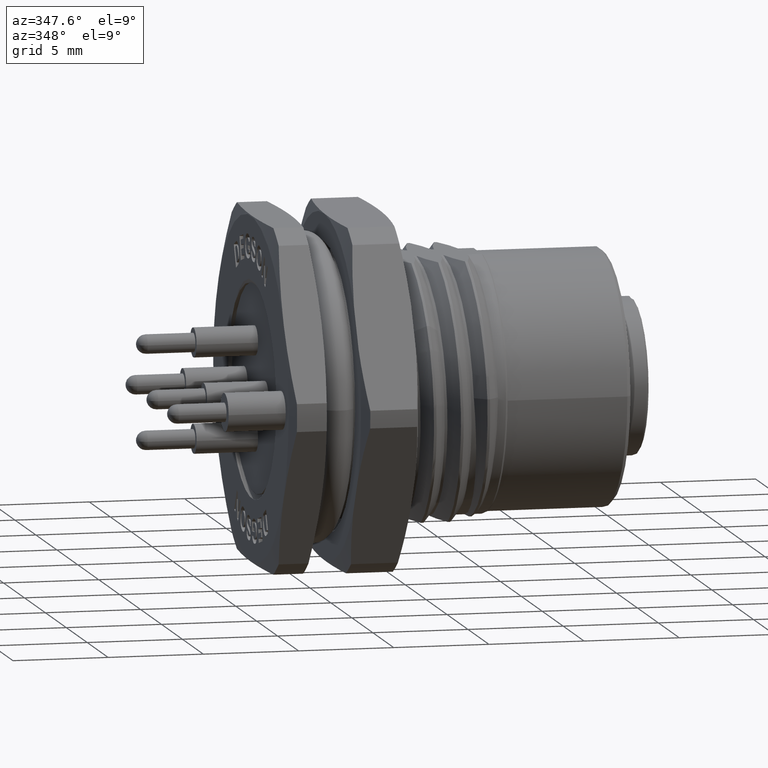
[diagram: clean part render]
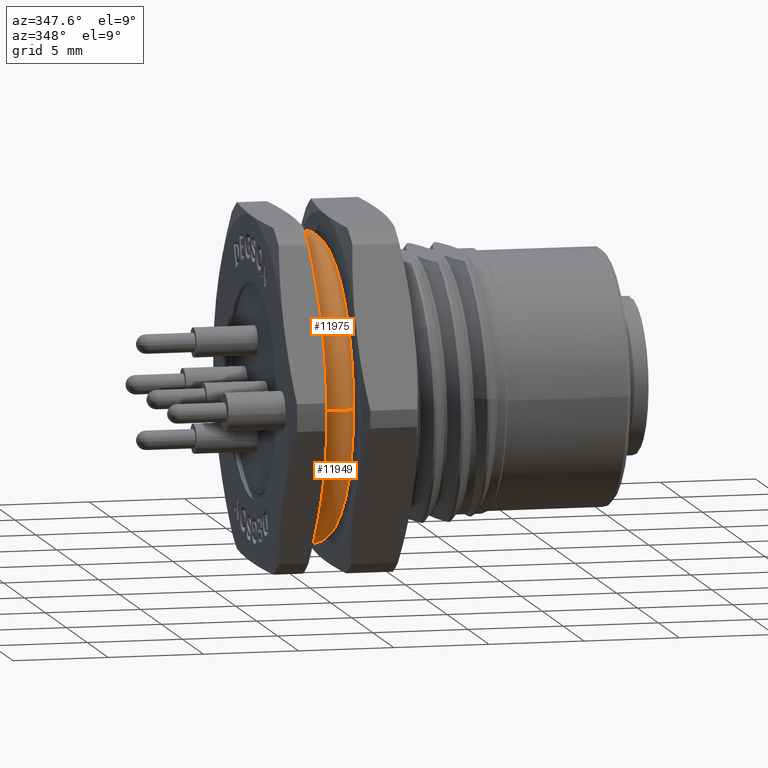
[diagram: same view with one multi-face feature highlighted, each face labeled with its STEP entity id]
A machine part, auxiliary view. The highlighted faces form ONE feature: a constant-radius fillet chain: 2 tangent blend faces with common blend radius 0.9 mm. The faces share edges in the B-rep.
Their STEP definitions:
[1] entity #11975 (Torus):
#1256=CARTESIAN_POINT('',(3.543307086619E-2,-2.814960629921E-1,0.E0));
#1257=DIRECTION('',(0.E0,0.E0,1.E0));
#1258=DIRECTION('',(-9.943904637273E-1,-1.057714784253E-1,0.E0));
#1259=AXIS2_PLACEMENT_3D('',#1256,#1257,#1258);
#1261=CARTESIAN_POINT('',(3.543307086619E-2,2.814960629921E-1,0.E0));
#1262=DIRECTION('',(0.E0,0.E0,1.E0));
#1263=DIRECTION('',(9.860132971836E-1,-1.666666666647E-1,0.E0));
#1264=AXIS2_PLACEMENT_3D('',#1261,#1262,#1263);
#1266=CARTESIAN_POINT('',(1.987630963299E-4,7.428432972406E-2,
2.754013515976E-1));
#1267=CARTESIAN_POINT('',(1.459506240303E-4,7.132406575666E-2,
2.756855760898E-1));
#1268=CARTESIAN_POINT('',(6.687559121089E-5,6.534974883958E-2,
2.762270869949E-1));
#1269=CARTESIAN_POINT('',(9.265593467468E-6,5.622676553167E-2,
2.769501391566E-1));
#1270=CARTESIAN_POINT('',(4.981820426422E-14,5.003684613870E-2,
2.773676256329E-1));
#1271=CARTESIAN_POINT('',(4.959574417818E-14,4.691486333754E-2,
2.775590551181E-1));
#1283=CARTESIAN_POINT('',(4.959574417818E-14,-4.691486333754E-2,
2.775590551181E-1));
#1284=CARTESIAN_POINT('',(4.981784939690E-14,-5.003703231787E-2,
2.773676142171E-1));
#1285=CARTESIAN_POINT('',(9.266800506669E-6,-5.622719967036E-2,
2.769501080318E-1));
#1286=CARTESIAN_POINT('',(6.688004032763E-5,-6.535018293335E-2,
2.762270493892E-1));
#1287=CARTESIAN_POINT('',(1.459539398076E-4,-7.132425161382E-2,
2.756855582450E-1));
#1288=CARTESIAN_POINT('',(1.987630963299E-4,-7.428432972406E-2,
2.754013515976E-1));
#1300=CARTESIAN_POINT('',(4.959574417818E-14,4.691486333754E-2,
2.775590551181E-1));
#1301=CARTESIAN_POINT('',(4.859568608724E-14,4.306270534444E-2,
2.766984935276E-1));
#1302=CARTESIAN_POINT('',(1.876036744944E-4,3.532731523585E-2,
2.751656431426E-1));
#1303=CARTESIAN_POINT('',(6.773489262774E-4,2.359334733026E-2,
2.735415920310E-1));
#1304=CARTESIAN_POINT('',(1.086337211768E-3,1.178910822818E-2,
2.725979641583E-1));
#1305=CARTESIAN_POINT('',(1.240539742541E-3,-4.802544990065E-5,
2.722922910934E-1));
#1306=CARTESIAN_POINT('',(1.084097723939E-3,-1.186798594657E-2,
2.726026104343E-1));
#1307=CARTESIAN_POINT('',(6.754075705450E-4,-2.363807150573E-2,
2.735471920567E-1));
#1308=CARTESIAN_POINT('',(1.873854925533E-4,-3.533716611082E-2,
2.751678068733E-1));
#1309=CARTESIAN_POINT('',(4.859778770129E-14,-4.306442918810E-2,
2.766988786295E-1));
#1310=CARTESIAN_POINT('',(4.959574417818E-14,-4.691486333754E-2,
2.775590551181E-1));
#1316=CARTESIAN_POINT('',(1.987630963299E-4,0.E0,0.E0));
#1317=DIRECTION('',(1.E0,0.E0,0.E0));
#1318=DIRECTION('',(0.E0,1.E0,0.E0));
#1319=AXIS2_PLACEMENT_3D('',#1316,#1317,#1318);
#1332=CARTESIAN_POINT('',(1.987630963299E-4,0.E0,0.E0));
#1333=DIRECTION('',(1.E0,0.E0,0.E0));
#1334=DIRECTION('',(0.E0,-2.604239291453E-1,9.654943692889E-1));
#1335=AXIS2_PLACEMENT_3D('',#1332,#1333,#1334);
#1355=CARTESIAN_POINT('',(7.037054990025E-2,0.E0,0.E0));
#1356=DIRECTION('',(1.E0,0.E0,0.E0));
#1357=DIRECTION('',(0.E0,1.E0,0.E0));
#1358=AXIS2_PLACEMENT_3D('',#1355,#1356,#1357);
#1642=CARTESIAN_POINT('',(7.037054990025E-2,-7.299407959725E-2,
2.657480314961E-1));
#1643=CARTESIAN_POINT('',(7.005777905063E-2,-6.600794451784E-2,
2.657480314961E-1));
#1644=CARTESIAN_POINT('',(6.921668395160E-2,-5.205995499235E-2,
2.657480314961E-1));
#1645=CARTESIAN_POINT('',(6.792343585525E-2,-3.098490510897E-2,
2.657480314961E-1));
#1646=CARTESIAN_POINT('',(6.714261206122E-2,-1.031617115069E-2,
2.657480314961E-1));
#1647=CARTESIAN_POINT('',(6.714291560785E-2,1.034162253896E-2,
2.657480314961E-1));
#1648=CARTESIAN_POINT('',(6.792585217767E-2,3.103301843631E-2,
2.657480314961E-1));
#1649=CARTESIAN_POINT('',(6.922005838781E-2,5.211058476768E-2,
2.657480314961E-1));
#1650=CARTESIAN_POINT('',(7.005872448813E-2,6.602906206803E-2,
2.657480314961E-1));
#1651=CARTESIAN_POINT('',(7.037054990025E-2,7.299407959725E-2,
2.657480314961E-1));
#1929=CARTESIAN_POINT('',(7.037054990025E-2,0.E0,0.E0));
#1930=DIRECTION('',(1.E0,0.E0,0.E0));
#1931=DIRECTION('',(0.E0,-2.648642316815E-1,9.642857142859E-1));
#1932=AXIS2_PLACEMENT_3D('',#1929,#1930,#1931);
#10988=VERTEX_POINT('',#1642);
#10989=VERTEX_POINT('',#1651);
#10990=CARTESIAN_POINT('',(7.037054990025E-2,-2.755905511811E-1,0.E0));
#10991=VERTEX_POINT('',#10990);
#10992=CARTESIAN_POINT('',(7.037054990025E-2,2.755905511811E-1,0.E0));
#10993=VERTEX_POINT('',#10992);
#10994=CARTESIAN_POINT('',(1.987630963299E-4,-7.428432972406E-2,
2.754013515976E-1));
#10995=CARTESIAN_POINT('',(1.987630963299E-4,-2.852438712827E-1,0.E0));
#10996=VERTEX_POINT('',#10994);
#10997=VERTEX_POINT('',#10995);
#11003=CARTESIAN_POINT('',(1.987630963299E-4,2.852438712827E-1,0.E0));
#11004=CARTESIAN_POINT('',(1.987630963299E-4,7.428432972406E-2,
2.754013515976E-1));
#11005=VERTEX_POINT('',#11003);
#11006=VERTEX_POINT('',#11004);
#11007=VERTEX_POINT('',#1271);
#11008=VERTEX_POINT('',#1283);
#11950=CARTESIAN_POINT('',(3.543307086619E-2,0.E0,0.E0));
#11951=DIRECTION('',(1.E0,0.E0,0.E0));
#11952=DIRECTION('',(0.E0,-1.E0,0.E0));
#11953=AXIS2_PLACEMENT_3D('',#11950,#11951,#11952);
#11954=TOROIDAL_SURFACE('',#11953,2.814960629921E-1,3.543307086614E-2);
#11956=ORIENTED_EDGE('',*,*,#11955,.F.);
#11958=ORIENTED_EDGE('',*,*,#11957,.F.);
#11960=ORIENTED_EDGE('',*,*,#11959,.F.);
#11962=ORIENTED_EDGE('',*,*,#11961,.F.);
#11963=ORIENTED_EDGE('',*,*,#11938,.F.);
#11965=ORIENTED_EDGE('',*,*,#11964,.T.);
#11967=ORIENTED_EDGE('',*,*,#11966,.F.);
#11969=ORIENTED_EDGE('',*,*,#11968,.T.);
#11970=ORIENTED_EDGE('',*,*,#11930,.F.);
#11972=ORIENTED_EDGE('',*,*,#11971,.F.);
#11973=EDGE_LOOP('',(#11956,#11958,#11960,#11962,#11963,#11965,#11967,#11969,
#11970,#11972));
#11974=FACE_OUTER_BOUND('',#11973,.F.);
#11975=ADVANCED_FACE('',(#11974),#11954,.T.);
#1260=CIRCLE('',#1259,3.543307086614E-2);
#1265=CIRCLE('',#1264,3.543307086614E-2);
#1272=B_SPLINE_CURVE_WITH_KNOTS('',3,(#1266,#1267,#1268,#1269,#1270,#1271),
.UNSPECIFIED.,.F.,.F.,(4,1,1,4),(0.E0,3.333333333333E-1,6.666666666667E-1,1.E0),
.UNSPECIFIED.);
#1289=B_SPLINE_CURVE_WITH_KNOTS('',3,(#1283,#1284,#1285,#1286,#1287,#1288),
.UNSPECIFIED.,.F.,.F.,(4,1,1,4),(0.E0,3.333333333333E-1,6.666666666667E-1,1.E0),
.UNSPECIFIED.);
#1311=B_SPLINE_CURVE_WITH_KNOTS('',3,(#1300,#1301,#1302,#1303,#1304,#1305,#1306,
#1307,#1308,#1309,#1310),.UNSPECIFIED.,.F.,.F.,(4,1,1,1,1,1,1,1,4),(0.E0,
1.25E-1,2.5E-1,3.75E-1,5.E-1,6.25E-1,7.5E-1,8.75E-1,1.E0),.UNSPECIFIED.);
#1320=CIRCLE('',#1319,2.852438712827E-1);
#1336=CIRCLE('',#1335,2.852438712827E-1);
#1359=CIRCLE('',#1358,2.755905511811E-1);
#1652=B_SPLINE_CURVE_WITH_KNOTS('',3,(#1642,#1643,#1644,#1645,#1646,#1647,#1648,
#1649,#1650,#1651),.UNSPECIFIED.,.F.,.F.,(4,1,1,1,1,1,1,4),(0.E0,
1.428571428571E-1,2.857142857143E-1,4.285714285714E-1,5.714285714286E-1,
7.142857142857E-1,8.571428571429E-1,1.E0),.UNSPECIFIED.);
#1933=CIRCLE('',#1932,2.755905511811E-1);
#11930=EDGE_CURVE('',#10997,#10991,#1260,.T.);
#11938=EDGE_CURVE('',#10993,#11005,#1265,.T.);
#11955=EDGE_CURVE('',#11008,#10996,#1289,.T.);
#11957=EDGE_CURVE('',#11007,#11008,#1311,.T.);
#11959=EDGE_CURVE('',#11006,#11007,#1272,.T.);
#11961=EDGE_CURVE('',#11005,#11006,#1320,.T.);
#11964=EDGE_CURVE('',#10993,#10989,#1359,.T.);
#11966=EDGE_CURVE('',#10988,#10989,#1652,.T.);
#11968=EDGE_CURVE('',#10988,#10991,#1933,.T.);
#11971=EDGE_CURVE('',#10996,#10997,#1336,.T.);
[2] entity #11949 (Torus):
#1212=CARTESIAN_POINT('',(1.987630963299E-4,-7.428432972406E-2,
-2.754013515976E-1));
#1213=CARTESIAN_POINT('',(1.459506240303E-4,-7.132406575666E-2,
-2.756855760898E-1));
#1214=CARTESIAN_POINT('',(6.687559121090E-5,-6.534974883958E-2,
-2.762270869949E-1));
#1215=CARTESIAN_POINT('',(9.265593467467E-6,-5.622676553167E-2,
-2.769501391566E-1));
#1216=CARTESIAN_POINT('',(4.981827788657E-14,-5.003684613870E-2,
-2.773676256329E-1));
#1217=CARTESIAN_POINT('',(4.959574417818E-14,-4.691486333754E-2,
-2.775590551181E-1));
#1229=CARTESIAN_POINT('',(4.959574417818E-14,4.691486333754E-2,
-2.775590551181E-1));
#1230=CARTESIAN_POINT('',(4.981799665038E-14,5.003703231787E-2,
-2.773676142171E-1));
#1231=CARTESIAN_POINT('',(9.266800506665E-6,5.622719967036E-2,
-2.769501080318E-1));
#1232=CARTESIAN_POINT('',(6.688004032764E-5,6.535018293335E-2,
-2.762270493892E-1));
#1233=CARTESIAN_POINT('',(1.459539398076E-4,7.132425161382E-2,
-2.756855582450E-1));
#1234=CARTESIAN_POINT('',(1.987630963299E-4,7.428432972406E-2,
-2.754013515976E-1));
#1240=CARTESIAN_POINT('',(4.959574417818E-14,-4.691486333754E-2,
-2.775590551181E-1));
#1241=CARTESIAN_POINT('',(4.859535512167E-14,-4.306270534444E-2,
-2.766984935276E-1));
#1242=CARTESIAN_POINT('',(1.876036744944E-4,-3.532731523585E-2,
-2.751656431426E-1));
#1243=CARTESIAN_POINT('',(6.773489262774E-4,-2.359334733026E-2,
-2.735415920310E-1));
#1244=CARTESIAN_POINT('',(1.086337211768E-3,-1.178910822818E-2,
-2.725979641583E-1));
#1245=CARTESIAN_POINT('',(1.240539742541E-3,4.802544990087E-5,
-2.722922910934E-1));
#1246=CARTESIAN_POINT('',(1.084097723939E-3,1.186798594657E-2,
-2.726026104343E-1));
#1247=CARTESIAN_POINT('',(6.754075705450E-4,2.363807150573E-2,
-2.735471920567E-1));
#1248=CARTESIAN_POINT('',(1.873854925534E-4,3.533716611082E-2,
-2.751678068733E-1));
#1249=CARTESIAN_POINT('',(4.859712606638E-14,4.306442918810E-2,
-2.766988786295E-1));
#1250=CARTESIAN_POINT('',(4.959574417818E-14,4.691486333754E-2,
-2.775590551181E-1));
#1256=CARTESIAN_POINT('',(3.543307086619E-2,-2.814960629921E-1,0.E0));
#1257=DIRECTION('',(0.E0,0.E0,1.E0));
#1258=DIRECTION('',(-9.943904637273E-1,-1.057714784253E-1,0.E0));
#1259=AXIS2_PLACEMENT_3D('',#1256,#1257,#1258);
#1261=CARTESIAN_POINT('',(3.543307086619E-2,2.814960629921E-1,0.E0));
#1262=DIRECTION('',(0.E0,0.E0,1.E0));
#1263=DIRECTION('',(9.860132971836E-1,-1.666666666647E-1,0.E0));
#1264=AXIS2_PLACEMENT_3D('',#1261,#1262,#1263);
#1327=CARTESIAN_POINT('',(1.987630963299E-4,0.E0,0.E0));
#1328=DIRECTION('',(1.E0,0.E0,0.E0));
#1329=DIRECTION('',(0.E0,2.604239291453E-1,-9.654943692889E-1));
#1330=AXIS2_PLACEMENT_3D('',#1327,#1328,#1329);
#1337=CARTESIAN_POINT('',(1.987630963299E-4,0.E0,0.E0));
#1338=DIRECTION('',(1.E0,0.E0,0.E0));
#1339=DIRECTION('',(0.E0,-1.E0,0.E0));
#1340=AXIS2_PLACEMENT_3D('',#1337,#1338,#1339);
#1342=CARTESIAN_POINT('',(7.037054990025E-2,0.E0,0.E0));
#1343=DIRECTION('',(1.E0,0.E0,0.E0));
#1344=DIRECTION('',(0.E0,2.648642316815E-1,-9.642857142859E-1));
#1345=AXIS2_PLACEMENT_3D('',#1342,#1343,#1344);
#1411=CARTESIAN_POINT('',(7.037054990025E-2,7.299407959725E-2,
-2.657480314961E-1));
#1412=CARTESIAN_POINT('',(7.005777905063E-2,6.600794451784E-2,
-2.657480314961E-1));
#1413=CARTESIAN_POINT('',(6.921668395160E-2,5.205995499235E-2,
-2.657480314961E-1));
#1414=CARTESIAN_POINT('',(6.792343585525E-2,3.098490510897E-2,
-2.657480314961E-1));
#1415=CARTESIAN_POINT('',(6.714261206122E-2,1.031617115069E-2,
-2.657480314961E-1));
#1416=CARTESIAN_POINT('',(6.714291560785E-2,-1.034162253897E-2,
-2.657480314961E-1));
#1417=CARTESIAN_POINT('',(6.792585217767E-2,-3.103301843631E-2,
-2.657480314961E-1));
#1418=CARTESIAN_POINT('',(6.922005838781E-2,-5.211058476768E-2,
-2.657480314961E-1));
#1419=CARTESIAN_POINT('',(7.005872448813E-2,-6.602906206803E-2,
-2.657480314961E-1));
#1420=CARTESIAN_POINT('',(7.037054990025E-2,-7.299407959725E-2,
-2.657480314961E-1));
#1924=CARTESIAN_POINT('',(7.037054990025E-2,0.E0,0.E0));
#1925=DIRECTION('',(1.E0,0.E0,0.E0));
#1926=DIRECTION('',(0.E0,-1.E0,0.E0));
#1927=AXIS2_PLACEMENT_3D('',#1924,#1925,#1926);
#10986=VERTEX_POINT('',#1411);
#10987=VERTEX_POINT('',#1420);
#10990=CARTESIAN_POINT('',(7.037054990025E-2,-2.755905511811E-1,0.E0));
#10991=VERTEX_POINT('',#10990);
#10992=CARTESIAN_POINT('',(7.037054990025E-2,2.755905511811E-1,0.E0));
#10993=VERTEX_POINT('',#10992);
#10995=CARTESIAN_POINT('',(1.987630963299E-4,-2.852438712827E-1,0.E0));
#10997=VERTEX_POINT('',#10995);
#10998=CARTESIAN_POINT('',(1.987630963299E-4,-7.428432972406E-2,
-2.754013515976E-1));
#10999=VERTEX_POINT('',#10998);
#11000=VERTEX_POINT('',#1217);
#11001=VERTEX_POINT('',#1229);
#11002=VERTEX_POINT('',#1234);
#11003=CARTESIAN_POINT('',(1.987630963299E-4,2.852438712827E-1,0.E0));
#11005=VERTEX_POINT('',#11003);
#11925=CARTESIAN_POINT('',(3.543307086619E-2,0.E0,0.E0));
#11926=DIRECTION('',(1.E0,0.E0,0.E0));
#11927=DIRECTION('',(0.E0,-1.E0,0.E0));
#11928=AXIS2_PLACEMENT_3D('',#11925,#11926,#11927);
#11929=TOROIDAL_SURFACE('',#11928,2.814960629921E-1,3.543307086614E-2);
#11931=ORIENTED_EDGE('',*,*,#11930,.T.);
#11933=ORIENTED_EDGE('',*,*,#11932,.T.);
#11935=ORIENTED_EDGE('',*,*,#11934,.F.);
#11937=ORIENTED_EDGE('',*,*,#11936,.T.);
#11939=ORIENTED_EDGE('',*,*,#11938,.T.);
#11941=ORIENTED_EDGE('',*,*,#11940,.F.);
#11942=ORIENTED_EDGE('',*,*,#11906,.F.);
#11943=ORIENTED_EDGE('',*,*,#11919,.F.);
#11944=ORIENTED_EDGE('',*,*,#11893,.F.);
#11946=ORIENTED_EDGE('',*,*,#11945,.F.);
#11947=EDGE_LOOP('',(#11931,#11933,#11935,#11937,#11939,#11941,#11942,#11943,
#11944,#11946));
#11948=FACE_OUTER_BOUND('',#11947,.F.);
#11949=ADVANCED_FACE('',(#11948),#11929,.T.);
#1218=B_SPLINE_CURVE_WITH_KNOTS('',3,(#1212,#1213,#1214,#1215,#1216,#1217),
.UNSPECIFIED.,.F.,.F.,(4,1,1,4),(0.E0,3.333333333333E-1,6.666666666667E-1,1.E0),
.UNSPECIFIED.);
#1235=B_SPLINE_CURVE_WITH_KNOTS('',3,(#1229,#1230,#1231,#1232,#1233,#1234),
.UNSPECIFIED.,.F.,.F.,(4,1,1,4),(0.E0,3.333333333333E-1,6.666666666667E-1,1.E0),
.UNSPECIFIED.);
#1251=B_SPLINE_CURVE_WITH_KNOTS('',3,(#1240,#1241,#1242,#1243,#1244,#1245,#1246,
#1247,#1248,#1249,#1250),.UNSPECIFIED.,.F.,.F.,(4,1,1,1,1,1,1,1,4),(0.E0,
1.25E-1,2.5E-1,3.75E-1,5.E-1,6.25E-1,7.5E-1,8.75E-1,1.E0),.UNSPECIFIED.);
#1260=CIRCLE('',#1259,3.543307086614E-2);
#1265=CIRCLE('',#1264,3.543307086614E-2);
#1331=CIRCLE('',#1330,2.852438712827E-1);
#1341=CIRCLE('',#1340,2.852438712827E-1);
#1346=CIRCLE('',#1345,2.755905511811E-1);
#1421=B_SPLINE_CURVE_WITH_KNOTS('',3,(#1411,#1412,#1413,#1414,#1415,#1416,#1417,
#1418,#1419,#1420),.UNSPECIFIED.,.F.,.F.,(4,1,1,1,1,1,1,4),(0.E0,
1.428571428571E-1,2.857142857143E-1,4.285714285714E-1,5.714285714286E-1,
7.142857142857E-1,8.571428571429E-1,1.E0),.UNSPECIFIED.);
#1928=CIRCLE('',#1927,2.755905511811E-1);
#11893=EDGE_CURVE('',#10999,#11000,#1218,.T.);
#11906=EDGE_CURVE('',#11001,#11002,#1235,.T.);
#11919=EDGE_CURVE('',#11000,#11001,#1251,.T.);
#11930=EDGE_CURVE('',#10997,#10991,#1260,.T.);
#11932=EDGE_CURVE('',#10991,#10987,#1928,.T.);
#11934=EDGE_CURVE('',#10986,#10987,#1421,.T.);
#11936=EDGE_CURVE('',#10986,#10993,#1346,.T.);
#11938=EDGE_CURVE('',#10993,#11005,#1265,.T.);
#11940=EDGE_CURVE('',#11002,#11005,#1331,.T.);
#11945=EDGE_CURVE('',#10997,#10999,#1341,.T.);